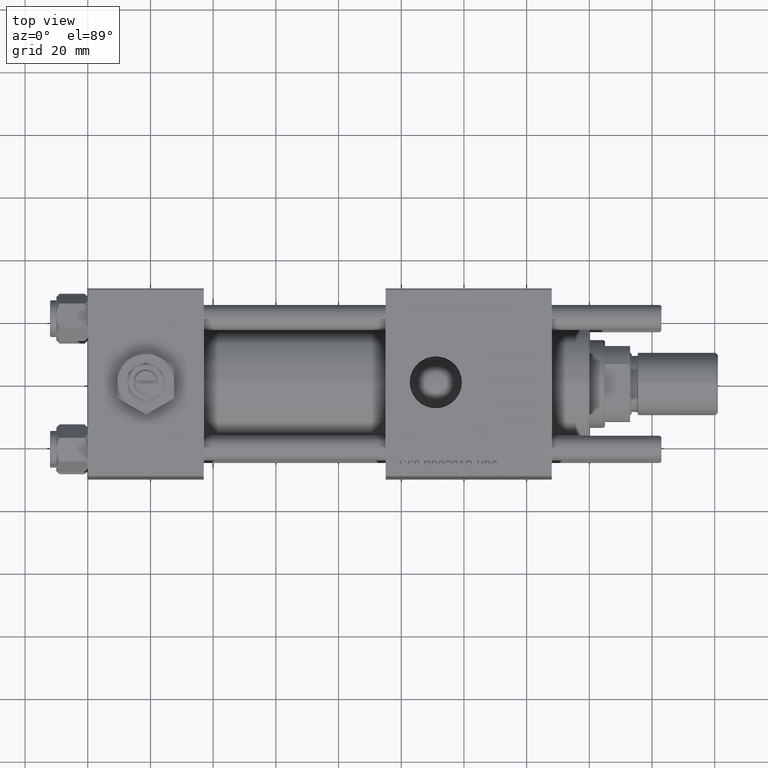
[diagram: clean part render]
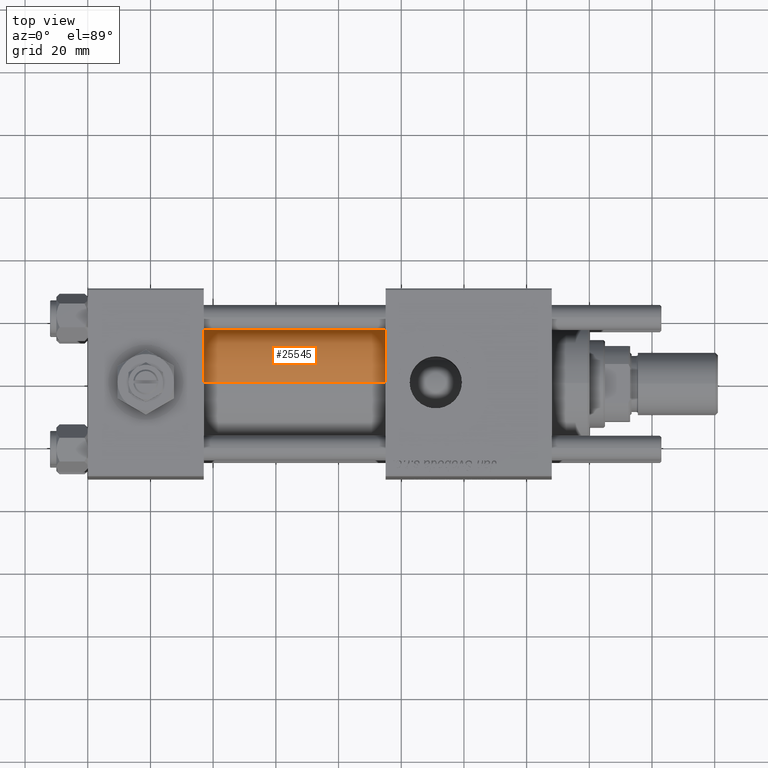
[diagram: same view with one face highlighted and labeled with its STEP entity id]
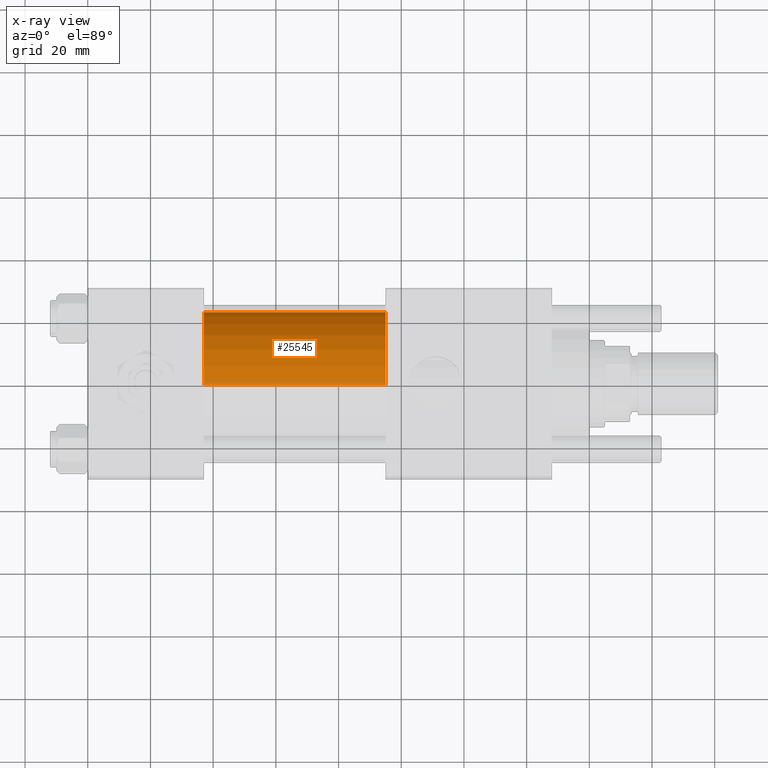
[diagram: x-ray of the same camera — body ghosted, the highlighted face saturated]
A machine part, top view. The second image highlights one B-rep face of the part: STEP entity #25545.
The next image is the same camera in x-ray: the body ghosted, the highlighted face saturated — about 3% of this face is hidden behind the body in this view.
In plain terms, the highlighted cylindrical surface (partial cylindrical patch) has radius 23 mm, axis along (-1, -0, -0).
Its self-contained STEP definition (entity closure, byte-faithful):
#1317 = EDGE_CURVE ( 'NONE', #25098, #34371, #50794, .T. ) ;
#6168 = CARTESIAN_POINT ( 'NONE',  ( 37.00000000000000000, -2.602085213965210642E-15, 23.00000000000000000 ) ) ;
#9669 = DIRECTION ( 'NONE',  ( -1.000000000000000000, -0.000000000000000000, -0.000000000000000000 ) ) ;
#11363 = VECTOR ( 'NONE', #9669, 1000.000000000000000 ) ;
#12200 = CYLINDRICAL_SURFACE ( 'NONE', #51895, 23.00000000000000000 ) ;
#13711 = ORIENTED_EDGE ( 'NONE', *, *, #1317, .T. ) ;
#13756 = CARTESIAN_POINT ( 'NONE',  ( 37.00000000000000000, 2.146024240737012665E-16, -23.00000000000000000 ) ) ;
#14028 = EDGE_CURVE ( 'NONE', #25098, #58004, #21891, .T. ) ;
#16675 = DIRECTION ( 'NONE',  ( 1.000000000000000000, -0.000000000000000000, 0.000000000000000000 ) ) ;
#16969 = CARTESIAN_POINT ( 'NONE',  ( 95.00000000000000000, -2.602085213965210642E-15, 23.00000000000000000 ) ) ;
#21199 = FACE_OUTER_BOUND ( 'NONE', #55712, .T. ) ;
#21891 = CIRCLE ( 'NONE', #42063, 23.00000000000000000 ) ;
#22367 = CARTESIAN_POINT ( 'NONE',  ( 37.00000000000000000, -2.602085213965210642E-15, 0.000000000000000000 ) ) ;
#23444 = EDGE_CURVE ( 'NONE', #34371, #53582, #39369, .T. ) ;
#25098 = VERTEX_POINT ( 'NONE', #26447 ) ;
#25545 = ADVANCED_FACE ( 'NONE', ( #21199 ), #12200, .T. ) ;
#25733 = EDGE_CURVE ( 'NONE', #58004, #53582, #38896, .T. ) ;
#25992 = DIRECTION ( 'NONE',  ( 0.000000000000000000, 0.000000000000000000, 1.000000000000000000 ) ) ;
#26447 = CARTESIAN_POINT ( 'NONE',  ( 95.00000000000000000, 2.146024240737012665E-16, -23.00000000000000000 ) ) ;
#27160 = CARTESIAN_POINT ( 'NONE',  ( 95.00000000000000000, -2.602085213965210642E-15, 0.000000000000000000 ) ) ;
#31728 = AXIS2_PLACEMENT_3D ( 'NONE', #22367, #16675, #25992 ) ;
#31821 = VECTOR ( 'NONE', #43408, 1000.000000000000000 ) ;
#34371 = VERTEX_POINT ( 'NONE', #13756 ) ;
#35290 = CARTESIAN_POINT ( 'NONE',  ( 95.00000000000000000, -2.602085213965210642E-15, 23.00000000000000000 ) ) ;
#38896 = LINE ( 'NONE', #35290, #31821 ) ;
#39298 = ORIENTED_EDGE ( 'NONE', *, *, #23444, .T. ) ;
#39369 = CIRCLE ( 'NONE', #31728, 23.00000000000000000 ) ;
#40958 = DIRECTION ( 'NONE',  ( 0.000000000000000000, 0.000000000000000000, -1.000000000000000000 ) ) ;
#40966 = ORIENTED_EDGE ( 'NONE', *, *, #25733, .F. ) ;
#41776 = CARTESIAN_POINT ( 'NONE',  ( 95.00000000000000000, 2.146024240737012665E-16, -23.00000000000000000 ) ) ;
#42063 = AXIS2_PLACEMENT_3D ( 'NONE', #27160, #45473, #40958 ) ;
#43408 = DIRECTION ( 'NONE',  ( -1.000000000000000000, -0.000000000000000000, -0.000000000000000000 ) ) ;
#43438 = DIRECTION ( 'NONE',  ( -1.000000000000000000, -0.000000000000000000, -0.000000000000000000 ) ) ;
#45473 = DIRECTION ( 'NONE',  ( 1.000000000000000000, 0.000000000000000000, 0.000000000000000000 ) ) ;
#48827 = CARTESIAN_POINT ( 'NONE',  ( 95.00000000000000000, -2.602085213965210642E-15, 0.000000000000000000 ) ) ;
#50794 = LINE ( 'NONE', #41776, #11363 ) ;
#51895 = AXIS2_PLACEMENT_3D ( 'NONE', #48827, #43438, #52746 ) ;
#52746 = DIRECTION ( 'NONE',  ( 0.000000000000000000, 0.000000000000000000, 1.000000000000000000 ) ) ;
#53582 = VERTEX_POINT ( 'NONE', #6168 ) ;
#53701 = ORIENTED_EDGE ( 'NONE', *, *, #14028, .F. ) ;
#55712 = EDGE_LOOP ( 'NONE', ( #53701, #13711, #39298, #40966 ) ) ;
#58004 = VERTEX_POINT ( 'NONE', #16969 ) ;